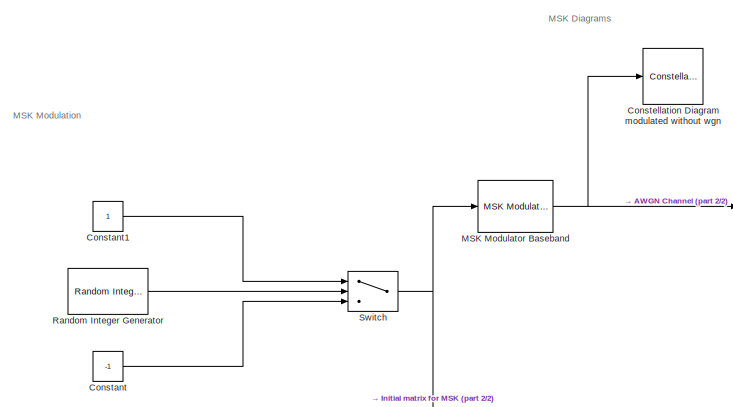
[diagram: root canvas - part 1/2, middle left region]
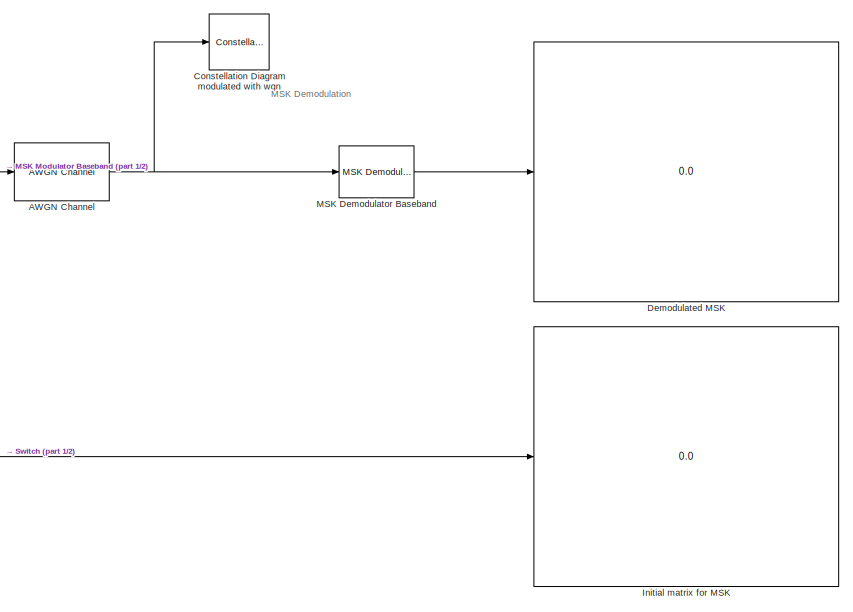
[diagram: root canvas - part 2/2, right side, full height]
MODEL slx_4c7431326047
KIND model
CONFIG AbsTol = auto
CONFIG EnableMultiTasking = off
CONFIG FixedStep = auto
CONFIG MaxStep = auto
CONFIG MinStep = auto
CONFIG RelTol = 1e-3
CONFIG SampleTimeConstraint = Unconstrained
CONFIG Solver = VariableStepAuto
CONFIG SolverName = VariableStepAuto
CONFIG StartTime = 0.0
CONFIG StopTime = 10.0
BLOCK [Reference] AWGN Channel  REF=commchan3/AWGN
Channel
  Ports = [1, 1]
  SourceBlock = commchan3/AWGN\nChannel
  SourceProductBaseCode = CM
  SourceType = AWGN Channel
  UserDataPersistent = on
BLOCK [Constant] Constant
  Value = -1
BLOCK [Constant] Constant1
BLOCK [ConstellationDiagram] Constellation Diagram modulated with wgn
  Ports = [1]
  ScopeSpecificationString = comm.scopes.ConstellationDiagramBlockCfg('CurrentConfiguration', extmgr.ConfigurationSet(extmgr.Configuration('Core','General UI',true),extmgr.Configuration('Core','Source UI',true),extmgr.Configuration('Sources','WiredSimulink',true),extmgr.Configuration('Visuals','Constellation',true,'MinYLim','-1.399','MaxYLim','1.4254','MinXLim','-1.1165','MaxXLim','1.143','AxesProperties',struct('Color',[0 0 ...<+2196ch>
BLOCK [ConstellationDiagram] Constellation Diagram modulated without wgn
  Ports = [1]
  ScopeSpecificationString = comm.scopes.ConstellationDiagramBlockCfg('CurrentConfiguration', extmgr.ConfigurationSet(extmgr.Configuration('Core','General UI',true),extmgr.Configuration('Core','Source UI',true),extmgr.Configuration('Sources','WiredSimulink',true),extmgr.Configuration('Visuals','Constellation',true,'AxesProperties',struct('Color',[0 0 0],'XColor',[0.686274509803922 0.686274509803922 0.686274509803922],'YColor'...<+2120ch>
BLOCK [Display] Demodulated MSK
  Decimation = 1
  Ports = [1]
BLOCK [Display] Initial matrix for MSK
  Decimation = 1
  Ports = [1]
BLOCK [Reference] MSK Demodulator Baseband  REF=commdigbbndcpm2/MSK
Demodulator
Baseband
  Ports = [1, 1]
  SourceBlock = commdigbbndcpm2/MSK\nDemodulator\nBaseband
  SourceProductBaseCode = CM
  SourceType = MSK Demodulator Baseband
  UserDataPersistent = on
BLOCK [Reference] MSK Modulator Baseband  REF=commdigbbndcpm2/MSK
Modulator
Baseband
  Ports = [1, 1]
  SourceBlock = commdigbbndcpm2/MSK\nModulator\nBaseband
  SourceProductBaseCode = CM
  SourceType = MSK Modulator Baseband
  UserDataPersistent = on
BLOCK [Reference] Random Integer Generator  REF=commrandsrc3/Random Integer
Generator
  Ports = [0, 1]
  SourceBlock = commrandsrc3/Random Integer\nGenerator
  SourceProductBaseCode = CM
  SourceType = Random Integer Generator
BLOCK [Switch] Switch
  Criteria = u2 > Threshold
  InputSameDT = off
  SaturateOnIntegerOverflow = off
  Threshold = 0.5
ANNOTATION (root): MSK Demodulation
ANNOTATION (root): MSK Diagrams
ANNOTATION (root): MSK Modulation
NET AWGN Channel:1 -> Constellation Diagram modulated with wgn:1, MSK Demodulator Baseband:1
LINE Constant1:1 -> Switch:1
LINE Constant:1 -> Switch:3
LINE MSK Demodulator Baseband:1 -> Demodulated MSK:1
NET MSK Modulator Baseband:1 -> AWGN Channel:1, Constellation Diagram modulated without wgn:1
LINE Random Integer Generator:1 -> Switch:2
NET Switch:1 -> Initial matrix for MSK:1, MSK Modulator Baseband:1
note: NET lines group one-source signal fan-out (src -> all destinations, sorted); 1:1 wires keep LINE
